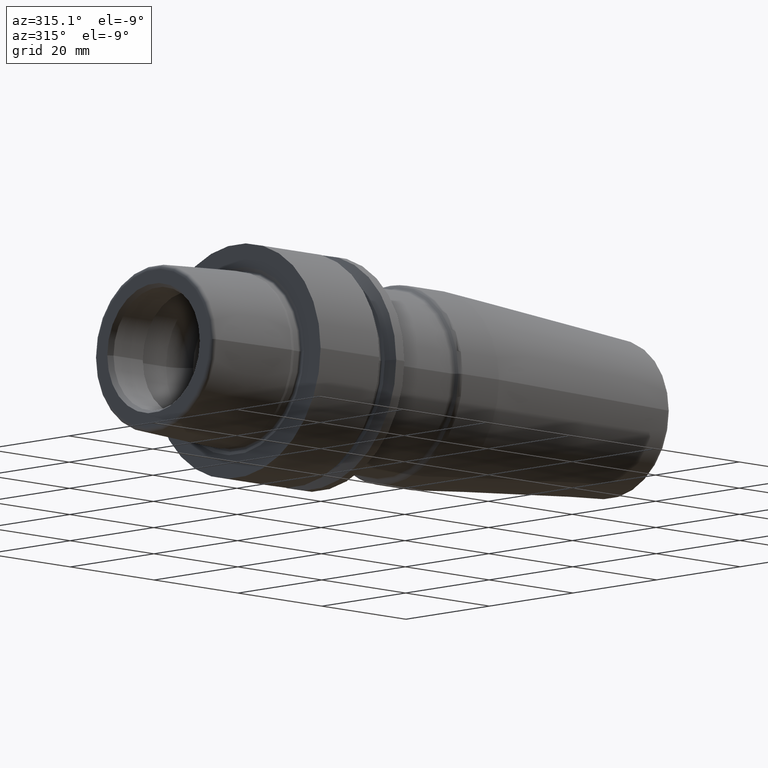
[diagram: clean part render]
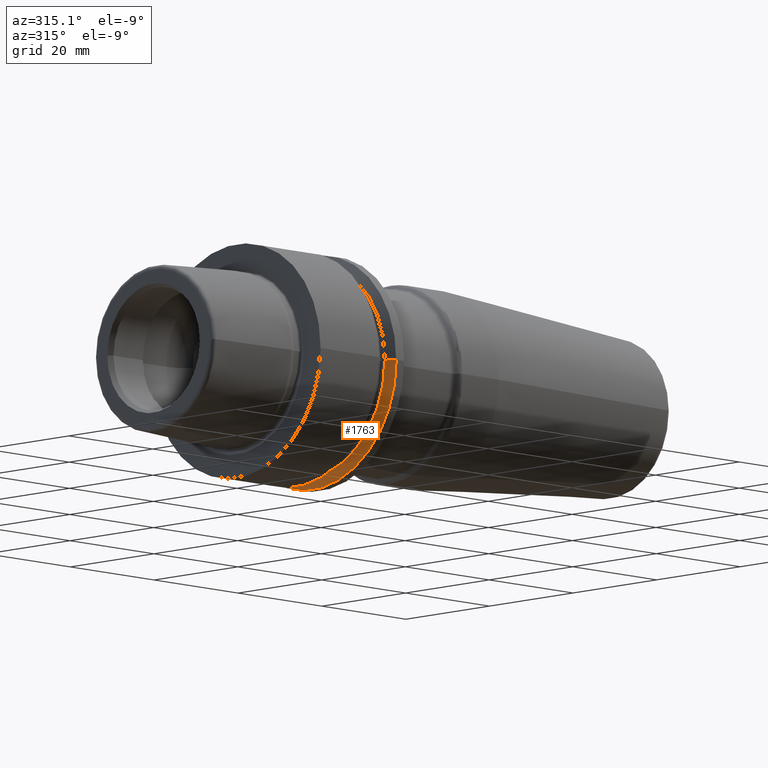
[diagram: same view with one face highlighted and labeled with its STEP entity id]
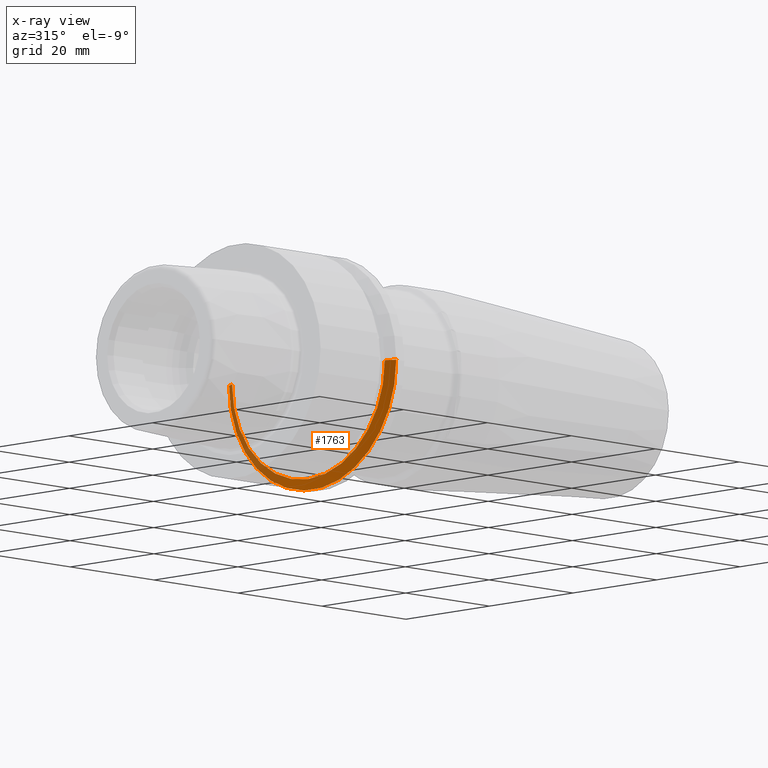
[diagram: x-ray of the same camera — body ghosted, the highlighted face saturated]
A machine part, auxiliary view. The second image highlights one B-rep face of the part: STEP entity #1763.
The next image is the same camera in x-ray: the body ghosted, the highlighted face saturated — about 21% of this face is hidden behind the body in this view.
In plain terms, the highlighted conical surface has half-angle 60 deg.
Its self-contained STEP definition (entity closure, byte-faithful):
#492=DIRECTION('',(5.E-1,8.660254037844E-1,0.E0));
#493=VECTOR('',#492,1.995319397787E0);
#494=CARTESIAN_POINT('',(1.70375E1,1.827200271285E1,0.E0));
#495=LINE('',#494,#493);
#496=CARTESIAN_POINT('',(1.70375E1,0.E0,0.E0));
#497=DIRECTION('',(-1.E0,0.E0,0.E0));
#498=DIRECTION('',(0.E0,1.E0,0.E0));
#499=AXIS2_PLACEMENT_3D('',#496,#497,#498);
#501=DIRECTION('',(5.E-1,-8.660254037844E-1,0.E0));
#502=VECTOR('',#501,1.995319397787E0);
#503=CARTESIAN_POINT('',(1.70375E1,-1.827200271285E1,0.E0));
#504=LINE('',#503,#502);
#591=CARTESIAN_POINT('',(1.803515969889E1,0.E0,0.E0));
#592=DIRECTION('',(1.E0,0.E0,0.E0));
#593=DIRECTION('',(0.E0,-1.E0,0.E0));
#594=AXIS2_PLACEMENT_3D('',#591,#592,#593);
#872=CARTESIAN_POINT('',(1.70375E1,1.827200271285E1,0.E0));
#873=CARTESIAN_POINT('',(1.70375E1,-1.827200271285E1,0.E0));
#874=VERTEX_POINT('',#872);
#875=VERTEX_POINT('',#873);
#876=CARTESIAN_POINT('',(1.803515969889E1,2.E1,0.E0));
#877=VERTEX_POINT('',#876);
#880=CARTESIAN_POINT('',(1.803515969889E1,-2.E1,0.E0));
#881=VERTEX_POINT('',#880);
#1750=CARTESIAN_POINT('',(1.753632984945E1,0.E0,0.E0));
#1751=DIRECTION('',(1.E0,0.E0,0.E0));
#1752=DIRECTION('',(0.E0,-1.E0,0.E0));
#1753=AXIS2_PLACEMENT_3D('',#1750,#1751,#1752);
#1754=CONICAL_SURFACE('',#1753,1.913600135643E1,6.E1);
#1755=ORIENTED_EDGE('',*,*,#1740,.F.);
#1757=ORIENTED_EDGE('',*,*,#1756,.T.);
#1758=ORIENTED_EDGE('',*,*,#1743,.T.);
#1760=ORIENTED_EDGE('',*,*,#1759,.T.);
#1761=EDGE_LOOP('',(#1755,#1757,#1758,#1760));
#1762=FACE_OUTER_BOUND('',#1761,.F.);
#1763=ADVANCED_FACE('',(#1762),#1754,.T.);
#500=CIRCLE('',#499,1.827200271285E1);
#595=CIRCLE('',#594,2.E1);
#1740=EDGE_CURVE('',#874,#877,#495,.T.);
#1743=EDGE_CURVE('',#875,#881,#504,.T.);
#1756=EDGE_CURVE('',#874,#875,#500,.T.);
#1759=EDGE_CURVE('',#881,#877,#595,.T.);